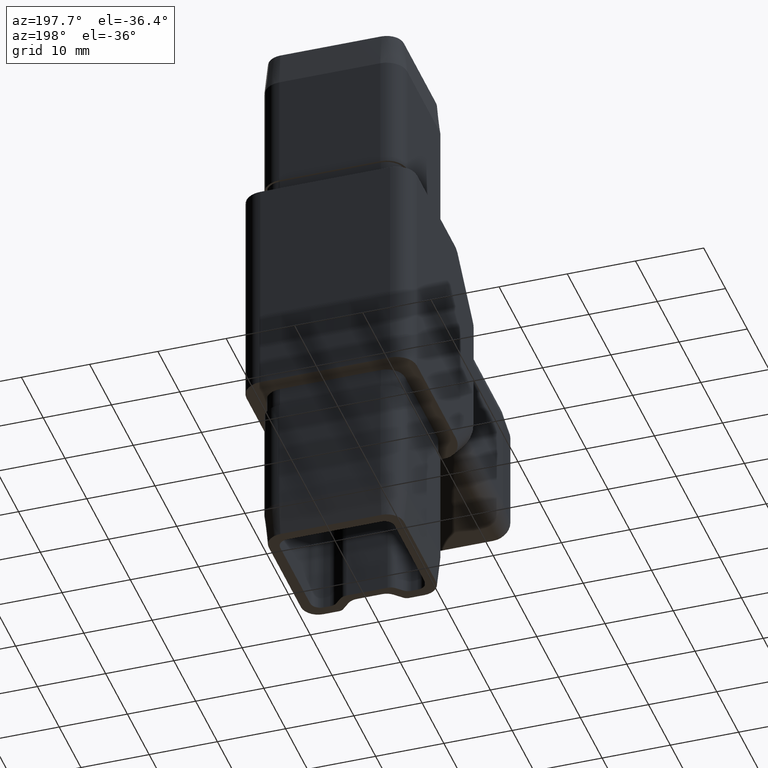
[diagram: clean part render]
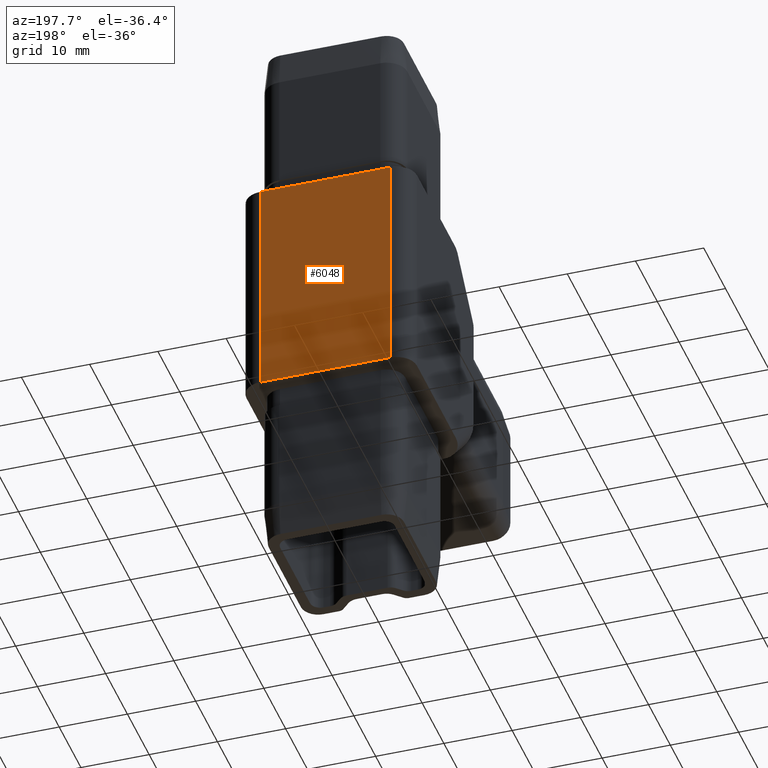
[diagram: same view with one face highlighted and labeled with its STEP entity id]
A machine part, auxiliary view. The second image highlights one B-rep face of the part: STEP entity #6048.
In plain terms, the highlighted planar face has unit normal (0, -1, 0).
Its self-contained STEP definition (entity closure, byte-faithful):
#475 = ORIENTED_EDGE ( 'NONE', *, *, #16816, .T. ) ;
#976 = DIRECTION ( 'NONE',  ( -0.0000000000000000000, -0.0000000000000000000, 1.000000000000000000 ) ) ;
#1031 = VERTEX_POINT ( 'NONE', #17295 ) ;
#1730 = LINE ( 'NONE', #13675, #13289 ) ;
#2674 = LINE ( 'NONE', #7185, #14967 ) ;
#3175 = DIRECTION ( 'NONE',  ( -1.000000000000000000, -0.0000000000000000000, -0.0000000000000000000 ) ) ;
#3466 = DIRECTION ( 'NONE',  ( 0.0000000000000000000, 0.0000000000000000000, -1.000000000000000000 ) ) ;
#3546 = EDGE_CURVE ( 'NONE', #6597, #4277, #13679, .T. ) ;
#4277 = VERTEX_POINT ( 'NONE', #18056 ) ;
#4337 = DIRECTION ( 'NONE',  ( 0.0000000000000000000, -0.0000000000000000000, -1.000000000000000000 ) ) ;
#4401 = CARTESIAN_POINT ( 'NONE',  ( -12.50000000000000400, 14.50000000000000500, 16.50000000000000000 ) ) ;
#4472 = PLANE ( 'NONE',  #13849 ) ;
#4734 = VERTEX_POINT ( 'NONE', #17264 ) ;
#5862 = EDGE_CURVE ( 'NONE', #6597, #4734, #6121, .T. ) ;
#6048 = ADVANCED_FACE ( 'NONE', ( #15046 ), #4472, .F. ) ;
#6121 = LINE ( 'NONE', #6591, #16260 ) ;
#6591 = CARTESIAN_POINT ( 'NONE',  ( 9.499999999999998200, 14.50000000000000500, 16.50000000000000000 ) ) ;
#6597 = VERTEX_POINT ( 'NONE', #13597 ) ;
#7185 = CARTESIAN_POINT ( 'NONE',  ( -9.500000000000005300, 14.50000000000000500, 16.50000000000000000 ) ) ;
#9074 = DIRECTION ( 'NONE',  ( 0.0000000000000000000, -1.000000000000000000, 0.0000000000000000000 ) ) ;
#11493 = ORIENTED_EDGE ( 'NONE', *, *, #5862, .T. ) ;
#11777 = EDGE_LOOP ( 'NONE', ( #475, #15017, #14185, #11493 ) ) ;
#12031 = VECTOR ( 'NONE', #16128, 1000.000000000000000 ) ;
#13289 = VECTOR ( 'NONE', #3175, 1000.000000000000000 ) ;
#13597 = CARTESIAN_POINT ( 'NONE',  ( 9.499999999999998200, 14.50000000000000500, 16.50000000000000000 ) ) ;
#13675 = CARTESIAN_POINT ( 'NONE',  ( -12.50000000000000400, 14.50000000000000500, -16.50000000000000000 ) ) ;
#13679 = LINE ( 'NONE', #17796, #12031 ) ;
#13849 = AXIS2_PLACEMENT_3D ( 'NONE', #4401, #9074, #4337 ) ;
#14185 = ORIENTED_EDGE ( 'NONE', *, *, #3546, .F. ) ;
#14967 = VECTOR ( 'NONE', #976, 1000.000000000000000 ) ;
#15017 = ORIENTED_EDGE ( 'NONE', *, *, #17826, .T. ) ;
#15046 = FACE_OUTER_BOUND ( 'NONE', #11777, .T. ) ;
#16128 = DIRECTION ( 'NONE',  ( -1.000000000000000000, -0.0000000000000000000, -0.0000000000000000000 ) ) ;
#16260 = VECTOR ( 'NONE', #3466, 1000.000000000000000 ) ;
#16816 = EDGE_CURVE ( 'NONE', #4734, #1031, #1730, .T. ) ;
#17264 = CARTESIAN_POINT ( 'NONE',  ( 9.499999999999998200, 14.50000000000000500, -16.50000000000000000 ) ) ;
#17295 = CARTESIAN_POINT ( 'NONE',  ( -9.500000000000005300, 14.50000000000000500, -16.50000000000000000 ) ) ;
#17796 = CARTESIAN_POINT ( 'NONE',  ( -12.50000000000000400, 14.50000000000000500, 16.50000000000000000 ) ) ;
#17826 = EDGE_CURVE ( 'NONE', #1031, #4277, #2674, .T. ) ;
#18056 = CARTESIAN_POINT ( 'NONE',  ( -9.500000000000005300, 14.50000000000000500, 16.50000000000000000 ) ) ;